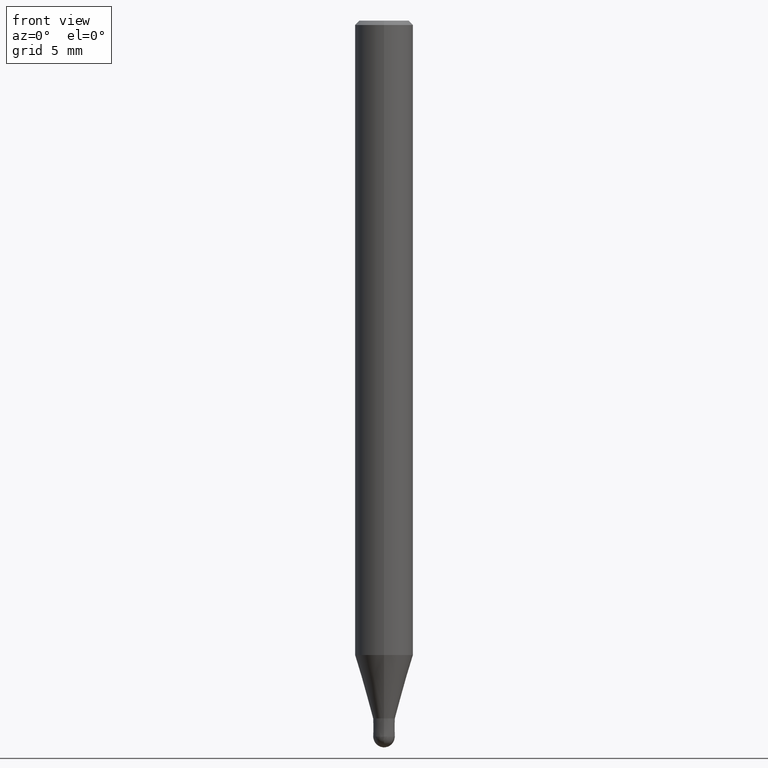
[diagram: clean part render]
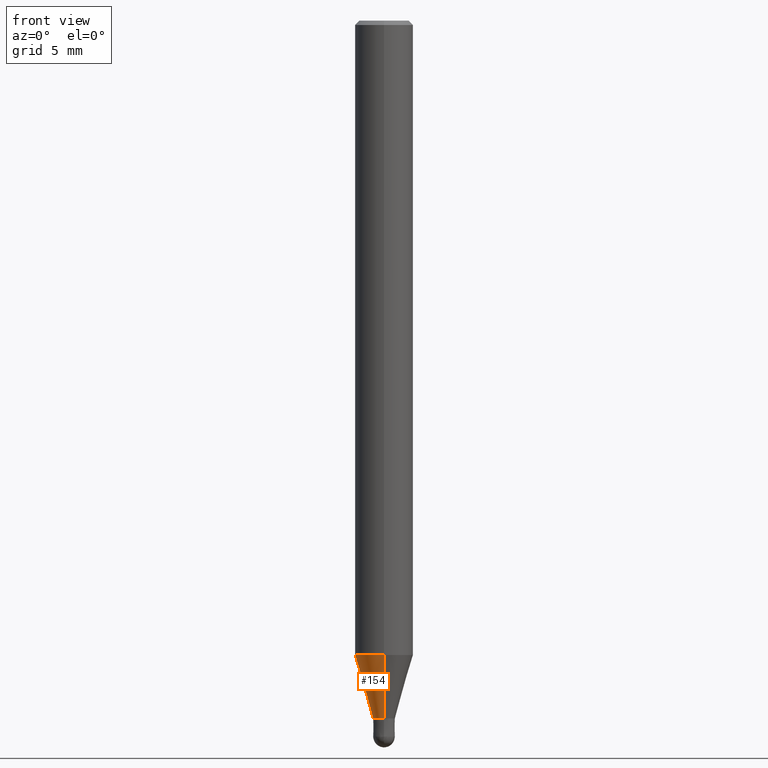
[diagram: same view with one face highlighted and labeled with its STEP entity id]
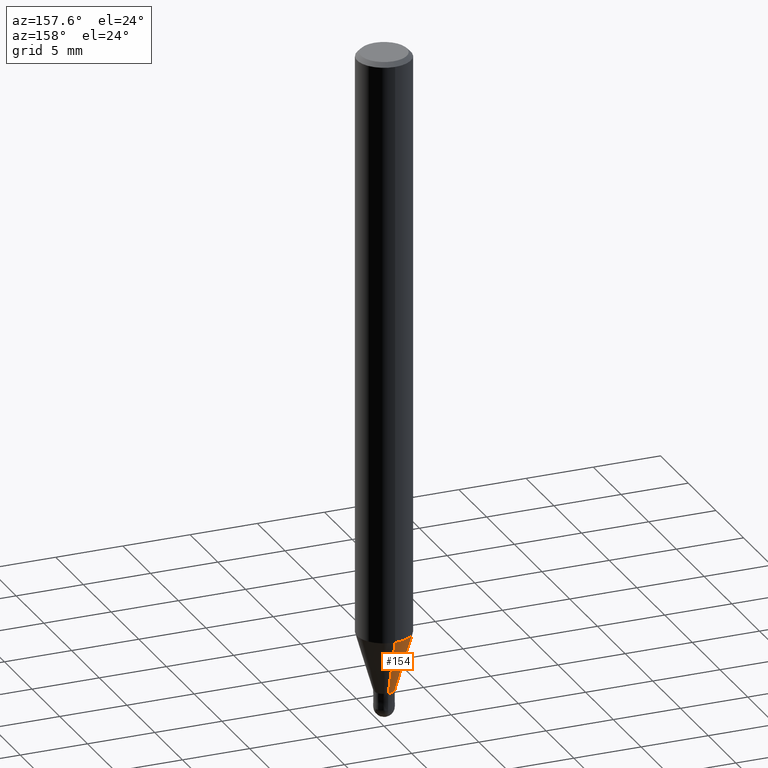
[diagram: same view with one face highlighted and labeled with its STEP entity id]
A machine part, front view. The second image highlights one B-rep face of the part: STEP entity #154.
A second angle (auxiliary view) of the same face is appended — the face is thin or edge-on in the first view.
In plain terms, the highlighted conical surface has half-angle 16.001 deg.
Its self-contained STEP definition (entity closure, byte-faithful):
#94=VERTEX_POINT('',#222);
#100=VERTEX_POINT('',#229);
#112=EDGE_CURVE('',#100,#170,#241,.T.);
#146=EDGE_CURVE('',#94,#170,#281,.T.);
#154=ADVANCED_FACE('',(#290),#291,.T.);
#170=VERTEX_POINT('',#309);
#172=EDGE_CURVE('',#186,#100,#311,.T.);
#186=VERTEX_POINT('',#326);
#190=EDGE_CURVE('',#94,#186,#330,.T.);
#222=CARTESIAN_POINT('',(9.18393535049092E-017,-0.74995,-48.0));
#229=CARTESIAN_POINT('',(0.0,1.99995,-43.641));
#241=LINE('',#382,#383);
#281=CIRCLE('',#433,0.74995);
#290=FACE_OUTER_BOUND('',#443,.T.);
#291=CONICAL_SURFACE('',#444,1.37495,0.279268973819818);
#309=CARTESIAN_POINT('',(0.0,0.74995,-48.0));
#311=CIRCLE('',#468,1.99995);
#326=CARTESIAN_POINT('',(2.44915147732706E-016,-1.99995,-43.641));
#330=LINE('',#490,#491);
#382=CARTESIAN_POINT('',(-1.68377250618808E-016,1.37495,-45.8205));
#383=VECTOR('',#533,1.0);
#433=AXIS2_PLACEMENT_3D('',#592,#593,#594);
#443=EDGE_LOOP('',(#607,#608,#609,#610));
#444=AXIS2_PLACEMENT_3D('',#611,#612,#613);
#468=AXIS2_PLACEMENT_3D('',#632,#633,#634);
#490=CARTESIAN_POINT('',(1.68377250618808E-016,-1.37495,-45.8205));
#491=VECTOR('',#649,1.0);
#533=DIRECTION('',(3.375664374138E-017,-0.27565301809855,-0.961257204713265));
#592=CARTESIAN_POINT('',(0.0,0.0,-48.0));
#593=DIRECTION('',(0.0,0.0,-1.0));
#594=DIRECTION('',(0.0,1.0,0.0));
#607=ORIENTED_EDGE('',*,*,#112,.T.);
#608=ORIENTED_EDGE('',*,*,#146,.F.);
#609=ORIENTED_EDGE('',*,*,#190,.T.);
#610=ORIENTED_EDGE('',*,*,#172,.T.);
#611=CARTESIAN_POINT('',(0.0,0.0,-45.8205));
#612=DIRECTION('',(-0.0,-0.0,1.0));
#613=DIRECTION('',(0.0,1.0,0.0));
#632=CARTESIAN_POINT('',(0.0,0.0,-43.641));
#633=DIRECTION('',(0.0,0.0,-1.0));
#634=DIRECTION('',(0.0,1.0,0.0));
#649=DIRECTION('',(3.375664374138E-017,-0.27565301809855,0.961257204713265));